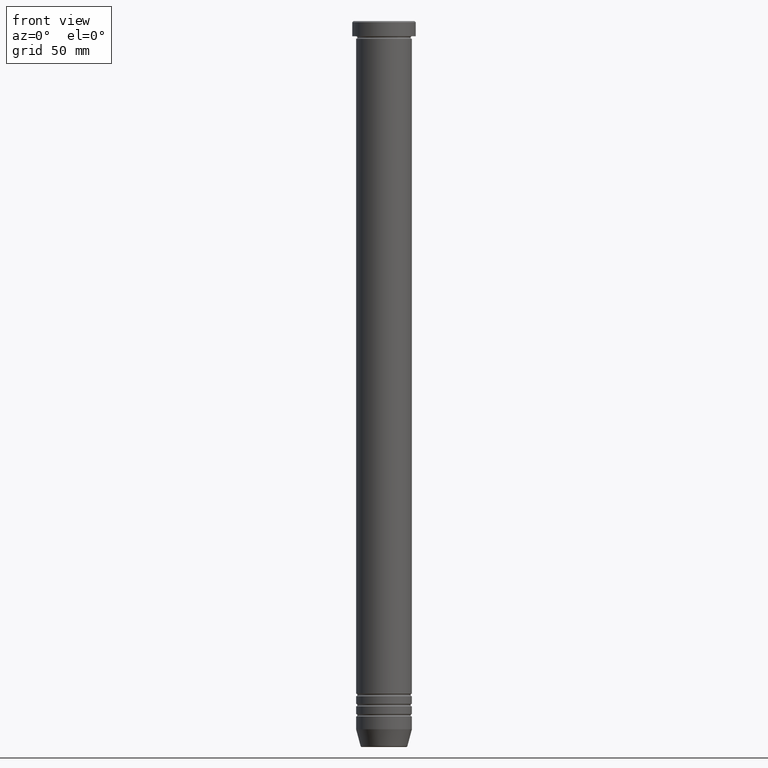
[diagram: clean part render]
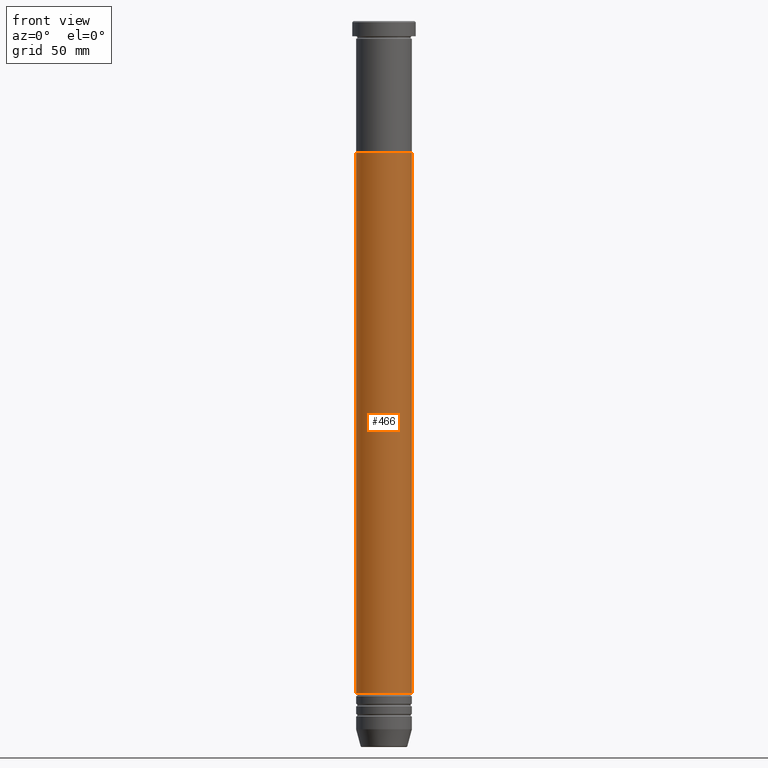
[diagram: same view with one face highlighted and labeled with its STEP entity id]
A machine part, front view. The second image highlights one B-rep face of the part: STEP entity #466.
In plain terms, the highlighted cylindrical surface (edge-blend (fillet) strip) has radius 11 mm, axis along (-0, -0, 1).
Its self-contained STEP definition (entity closure, byte-faithful):
#23 = VECTOR ( 'NONE', #540, 1000.000000000000000 ) ;
#92 = VERTEX_POINT ( 'NONE', #574 ) ;
#132 = FACE_OUTER_BOUND ( 'NONE', #1065, .T. ) ;
#173 = CIRCLE ( 'NONE', #947, 11.00000000000000000 ) ;
#174 = VECTOR ( 'NONE', #527, 1000.000000000000000 ) ;
#182 = CARTESIAN_POINT ( 'NONE',  ( -10.99999999999999645, 1.347111479062088010E-15, 0.000000000000000000 ) ) ;
#184 = CARTESIAN_POINT ( 'NONE',  ( 10.99999999999999467, 0.000000000000000000, -265.0000000000000000 ) ) ;
#201 = EDGE_CURVE ( 'NONE', #519, #784, #330, .T. ) ;
#209 = EDGE_CURVE ( 'NONE', #519, #92, #628, .T. ) ;
#227 = CYLINDRICAL_SURFACE ( 'NONE', #534, 10.99999999999999645 ) ;
#236 = CARTESIAN_POINT ( 'NONE',  ( 10.99999999999999645, 0.000000000000000000, 0.000000000000000000 ) ) ;
#283 = EDGE_CURVE ( 'NONE', #92, #344, #173, .T. ) ;
#284 = CARTESIAN_POINT ( 'NONE',  ( 0.000000000000000000, 0.000000000000000000, -52.00000000000000000 ) ) ;
#305 = ORIENTED_EDGE ( 'NONE', *, *, #283, .F. ) ;
#306 = DIRECTION ( 'NONE',  ( 1.000000000000000000, 0.000000000000000000, 0.000000000000000000 ) ) ;
#330 = CIRCLE ( 'NONE', #592, 10.99999999999999467 ) ;
#344 = VERTEX_POINT ( 'NONE', #732 ) ;
#392 = ORIENTED_EDGE ( 'NONE', *, *, #201, .T. ) ;
#398 = DIRECTION ( 'NONE',  ( -0.000000000000000000, -0.000000000000000000, 1.000000000000000000 ) ) ;
#405 = CARTESIAN_POINT ( 'NONE',  ( 0.000000000000000000, 0.000000000000000000, 0.000000000000000000 ) ) ;
#455 = DIRECTION ( 'NONE',  ( -0.000000000000000000, -0.000000000000000000, 1.000000000000000000 ) ) ;
#466 = ADVANCED_FACE ( 'NONE', ( #132 ), #227, .T. ) ;
#506 = LINE ( 'NONE', #236, #174 ) ;
#519 = VERTEX_POINT ( 'NONE', #687 ) ;
#527 = DIRECTION ( 'NONE',  ( -0.000000000000000000, -0.000000000000000000, 1.000000000000000000 ) ) ;
#534 = AXIS2_PLACEMENT_3D ( 'NONE', #405, #398, #938 ) ;
#540 = DIRECTION ( 'NONE',  ( -0.000000000000000000, -0.000000000000000000, 1.000000000000000000 ) ) ;
#574 = CARTESIAN_POINT ( 'NONE',  ( -10.99999999999999822, 1.347111479062088405E-15, -52.00000000000000000 ) ) ;
#592 = AXIS2_PLACEMENT_3D ( 'NONE', #1051, #806, #1143 ) ;
#621 = ORIENTED_EDGE ( 'NONE', *, *, #209, .F. ) ;
#628 = LINE ( 'NONE', #182, #23 ) ;
#687 = CARTESIAN_POINT ( 'NONE',  ( -10.99999999999999467, 1.347111479062087813E-15, -265.0000000000000000 ) ) ;
#706 = EDGE_CURVE ( 'NONE', #784, #344, #506, .T. ) ;
#732 = CARTESIAN_POINT ( 'NONE',  ( 11.00000000000000000, 0.000000000000000000, -52.00000000000000000 ) ) ;
#784 = VERTEX_POINT ( 'NONE', #184 ) ;
#806 = DIRECTION ( 'NONE',  ( -0.000000000000000000, -0.000000000000000000, 1.000000000000000000 ) ) ;
#938 = DIRECTION ( 'NONE',  ( 1.000000000000000000, 0.000000000000000000, 0.000000000000000000 ) ) ;
#947 = AXIS2_PLACEMENT_3D ( 'NONE', #284, #455, #306 ) ;
#1049 = ORIENTED_EDGE ( 'NONE', *, *, #706, .T. ) ;
#1051 = CARTESIAN_POINT ( 'NONE',  ( 0.000000000000000000, 0.000000000000000000, -265.0000000000000000 ) ) ;
#1065 = EDGE_LOOP ( 'NONE', ( #621, #392, #1049, #305 ) ) ;
#1143 = DIRECTION ( 'NONE',  ( 1.000000000000000000, 0.000000000000000000, 0.000000000000000000 ) ) ;